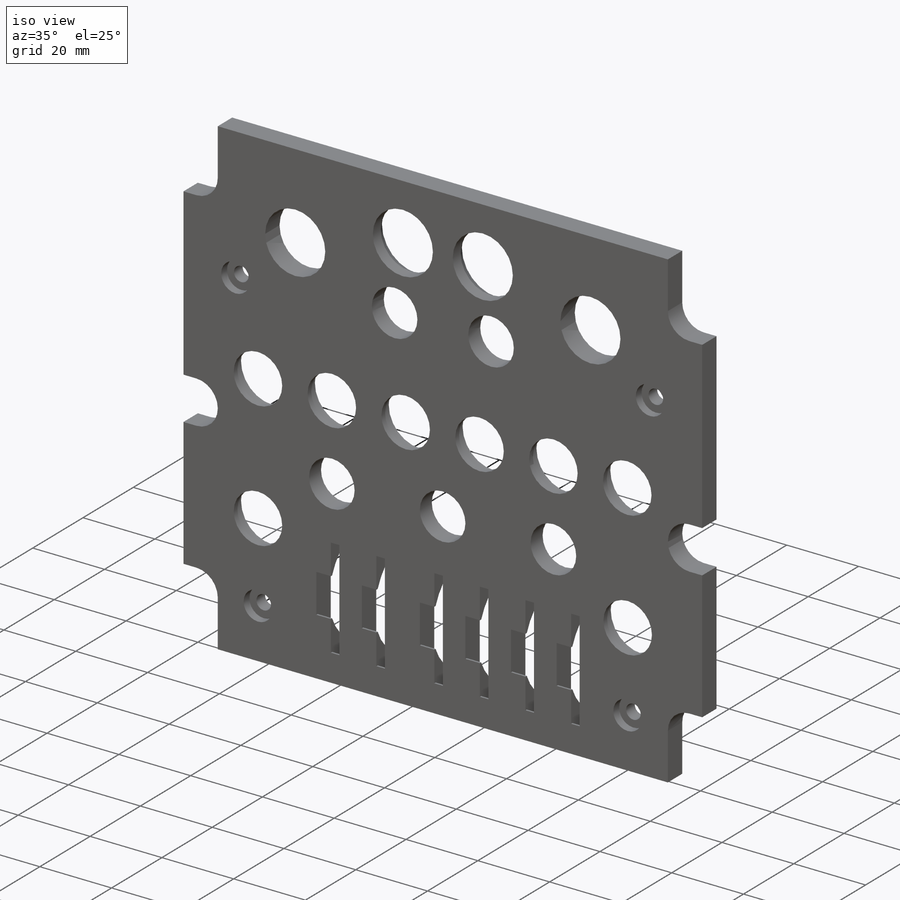
[diagram: iso view]
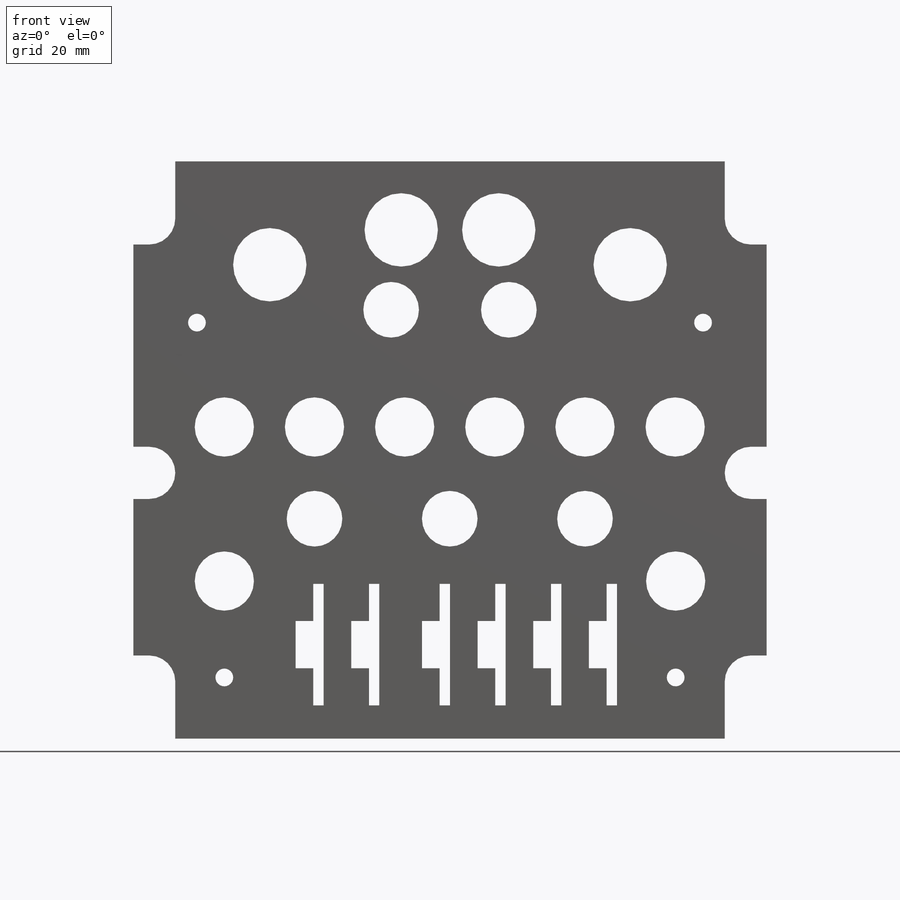
[diagram: front view]
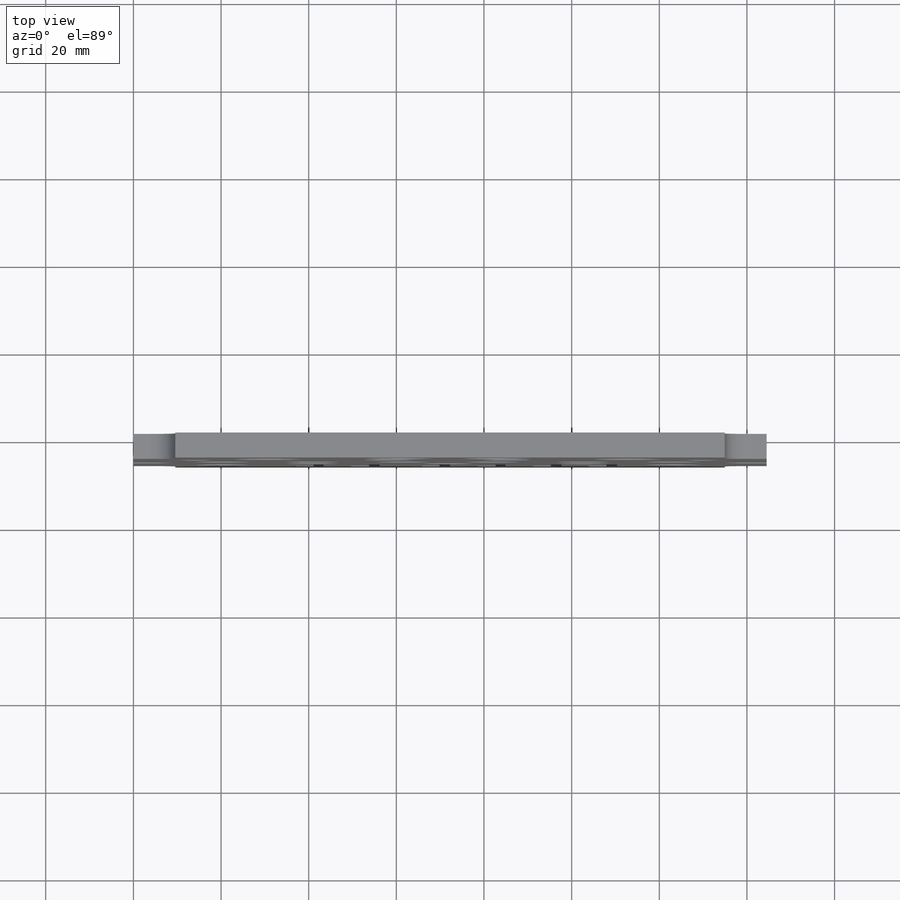
[diagram: top view]
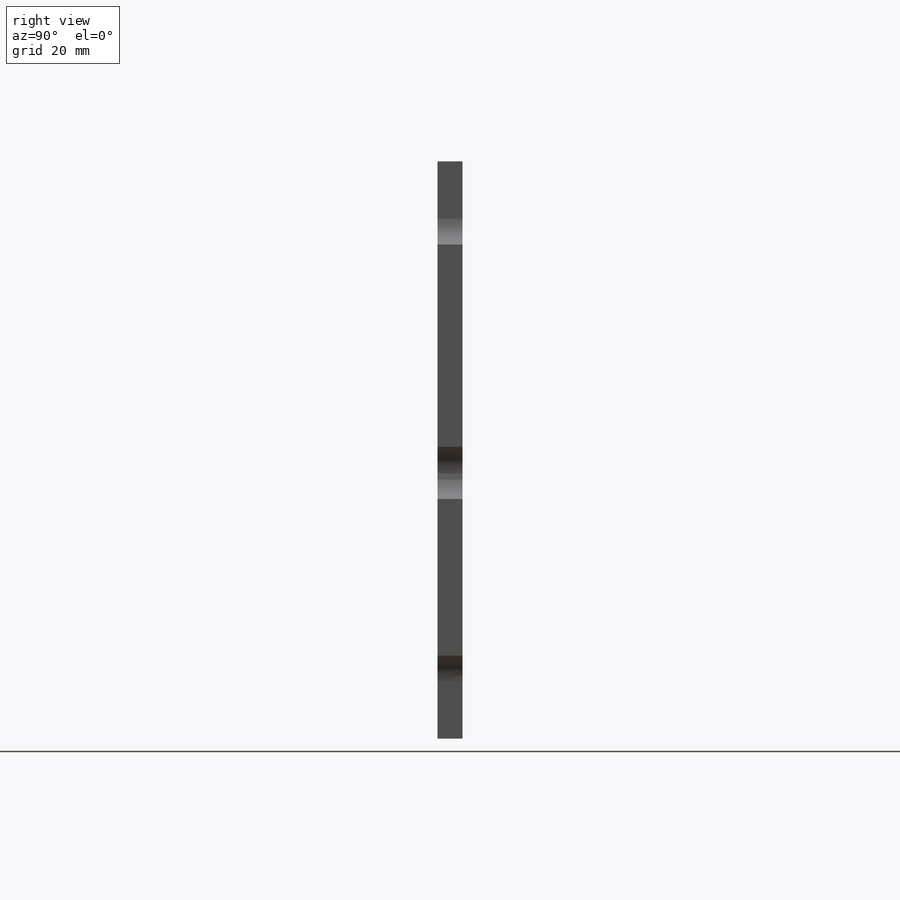
[diagram: right view]
SOLIDWORKS PART (.sldprt)
format: sldprt  version: not decoded by parser v0  size: 751,104 bytes
history: native  units: mm
features: sketch x18, cut_extrude x17, material x1, extrude x1, chamfer x1 (+16 scaffold rows collapsed)
feature tree (54):
  scaffold x16  (default folders/planes/origin — collapsed)
  material  "Material <not specified>"
  sketch  "Sketch1"  dims[c1.D5=5.9563mm c1.D6=~11.90625mm c1.D4=~11.90625mm c1.D1=144.4879mm c1.D2=131.6863mm c2.D1=144.4879mm c2.D2=131.6863mm c2.D5=13.0048mm c2.D3=5.9563mm c2.D4=5.9563mm c3.D5=3.6068mm c3.D6=13.0048mm c4.D5=13.0048mm c4.D3=47.625mm]
  extrude  "Extrude1"  Depth=5.715mm
  sketch  "Sketch2"  dims[c1.D3=13.5128mm c1.D4=12.7mm c1.D6=16.7386mm c1.D12=12.7mm c1.D13=12.7mm c1.D15=4.0513mm c1.D2=~46.14545mm c1.D8=22.2631mm c2.D13=26.8605mm c2.D18=27.7241mm c2.D17=10.795mm c3.D18=6.4008mm c3.D1=50.165mm c3.D2=20.7518mm c3.D5=35.941mm c3.D7=7.2517mm c3.D9=31.1277mm c3.D10=23.5712mm c3.D11=33.8455mm c3.D14=2.3622mm c3.D15=7.5692mm c3.D16=27.7241mm c3.D17=6.4008mm c4.D14=13.9446mm c4.D16=14.5034mm c4.D17=36.7792mm]
  cut_extrude  "Front Face Hole Cuts"  [1 undecoded]
  sketch  "Sketch3"  dims[D1=7.9883mm D2=7.9883mm]
  cut_extrude  "Front Face Screw Hole Recess"  Depth=2.286mm
  chamfer  "Chamfer1"  Distance=2.54mm Angle=30deg
  sketch  "Sketch4"  dims[D1=17.4625mm D2=17.4625mm]
  cut_extrude  "Extrude4"  Depth=4.23164mm
  sketch  "Sketch5"  dims[D1=15.8877mm]
  cut_extrude  "Extrude5"  Depth=0.9525mm
  sketch  "Sketch7"  dims[c1.D2=10.795mm c2.D2=90.0deg c3.D2=11.9126mm c3.D1=0.508mm]
  cut_extrude  "Extrude6"  [1 undecoded]
  sketch  "Sketch15"  dims[D1=0.0mm]
  cut_extrude  "Extrude13"  [1 undecoded]
  sketch  "Sketch16"  dims[D1=0.0mm]
  cut_extrude  "Extrude14"  [1 undecoded]
  sketch  "Sketch17"  dims[D1=0.0mm]
  cut_extrude  "Extrude15"  [1 undecoded]
  sketch  "Sketch18"  dims[D1=0.0mm]
  cut_extrude  "Extrude16"  [1 undecoded]
  sketch  "Sketch19"  dims[D1=0.0mm]
  cut_extrude  "Extrude17"  [1 undecoded]
  sketch  "Sketch20"  dims[D2=17.78mm D1=0.508mm]
  cut_extrude  "Extrude18"  [1 undecoded]
  sketch  "Sketch21"  dims[D1=0.0mm]
  cut_extrude  "Extrude19"  [1 undecoded]
  sketch  "Sketch22"  dims[D1=0.0mm]
  cut_extrude  "Extrude20"  [1 undecoded]
  sketch  "Sketch23"  dims[D1=0.0mm]
  cut_extrude  "Extrude21"  [1 undecoded]
  sketch  "Sketch24"  dims[D1=0.0mm]
  cut_extrude  "Extrude22"  [1 undecoded]
  sketch  "Sketch25"  dims[D1=0.0mm]
  cut_extrude  "Extrude23"  [1 undecoded]
  sketch  "Sketch26"  dims[c1.D1=18.8468mm c1.D2=4.2799mm c1.D3=16.3068mm c1.D4=14.1605mm c2.D3=24.2316mm]
  cut_extrude  "Extrude24"  Depth=3.175mm
decode coverage: 24 of 37 modeling features carry decoded parameters
note: ~ marks probable driven/reference dimensions
note: 13 parameter values undecoded
summary: no parameter record found for 13 features
note: suppression state not decoded; provenance and decode notes live in map.json
